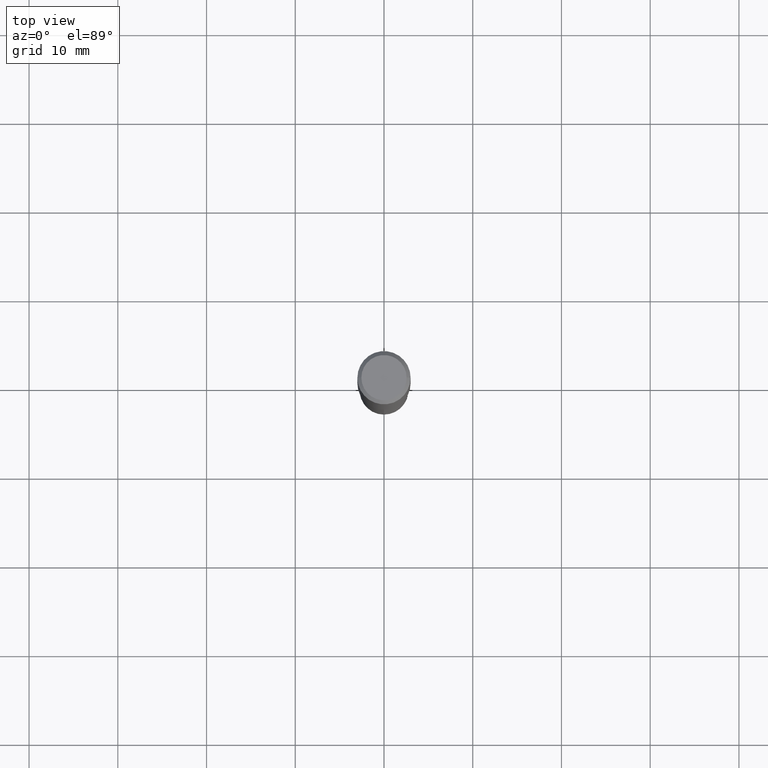
[diagram: clean part render]
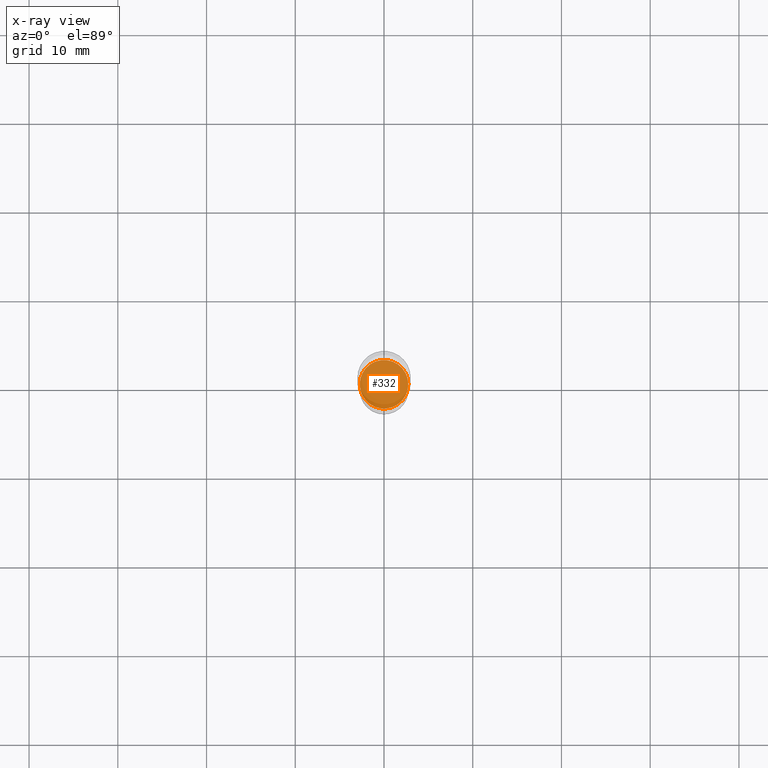
[diagram: x-ray — body ghosted, one internal face saturated and labeled with its STEP entity id]
A machine part, top view, then the same camera in x-ray: the body is ghosted and one INTERNAL B-rep face — a face not visible from any outside direction — is saturated and labeled: STEP entity #332.
In plain terms, the highlighted planar face has unit normal (-0, 0, 1).
Its self-contained STEP definition (entity closure, byte-faithful):
#2 = FACE_OUTER_BOUND ( 'NONE', #188, .T. ) ;
#17 = DIRECTION ( 'NONE',  ( 1.000000000000000000, -6.982962677686263555E-15, 0.000000000000000000 ) ) ;
#33 = PLANE ( 'NONE',  #208 ) ;
#53 = CARTESIAN_POINT ( 'NONE',  ( 4.187865330592046870E-29, -5.979161792768887170E-15, -1.712500000000000133 ) ) ;
#106 = CARTESIAN_POINT ( 'NONE',  ( -0.1077499999999999986, -5.210902767813268719E-15, -1.712500000000000133 ) ) ;
#131 = AXIS2_PLACEMENT_3D ( 'NONE', #53, #207, #17 ) ;
#146 = AXIS2_PLACEMENT_3D ( 'NONE', #222, #317, #184 ) ;
#158 = DIRECTION ( 'NONE',  ( -2.438088387897960049E-29, 3.491481338843145188E-15, 1.000000000000000000 ) ) ;
#180 = VERTEX_POINT ( 'NONE', #106 ) ;
#184 = DIRECTION ( 'NONE',  ( 1.000000000000000000, -6.982962677686263555E-15, 0.000000000000000000 ) ) ;
#188 = EDGE_LOOP ( 'NONE', ( #433, #485 ) ) ;
#200 = EDGE_CURVE ( 'NONE', #180, #322, #432, .T. ) ;
#207 = DIRECTION ( 'NONE',  ( -2.445468806185136597E-29, 3.491481338843145583E-15, 1.000000000000000000 ) ) ;
#208 = AXIS2_PLACEMENT_3D ( 'NONE', #335, #158, #228 ) ;
#222 = CARTESIAN_POINT ( 'NONE',  ( 4.187865330592046870E-29, -5.979161792768887170E-15, -1.712500000000000133 ) ) ;
#228 = DIRECTION ( 'NONE',  ( 1.000000000000000000, -6.982962677686265922E-15, 4.876176775795935793E-29 ) ) ;
#285 = CIRCLE ( 'NONE', #131, 0.1077499999999999986 ) ;
#288 = EDGE_CURVE ( 'NONE', #322, #180, #285, .T. ) ;
#310 = CARTESIAN_POINT ( 'NONE',  ( 0.1077499999999999986, -6.731576021289582030E-15, -1.712500000000000133 ) ) ;
#317 = DIRECTION ( 'NONE',  ( -2.445468806185136597E-29, 3.491481338843145583E-15, 1.000000000000000000 ) ) ;
#322 = VERTEX_POINT ( 'NONE', #310 ) ;
#332 = ADVANCED_FACE ( 'NONE', ( #2 ), #33, .F. ) ;
#335 = CARTESIAN_POINT ( 'NONE',  ( 4.187865330592046870E-29, -5.979161792768887170E-15, -1.712500000000000133 ) ) ;
#432 = CIRCLE ( 'NONE', #146, 0.1077499999999999986 ) ;
#433 = ORIENTED_EDGE ( 'NONE', *, *, #288, .F. ) ;
#485 = ORIENTED_EDGE ( 'NONE', *, *, #200, .F. ) ;